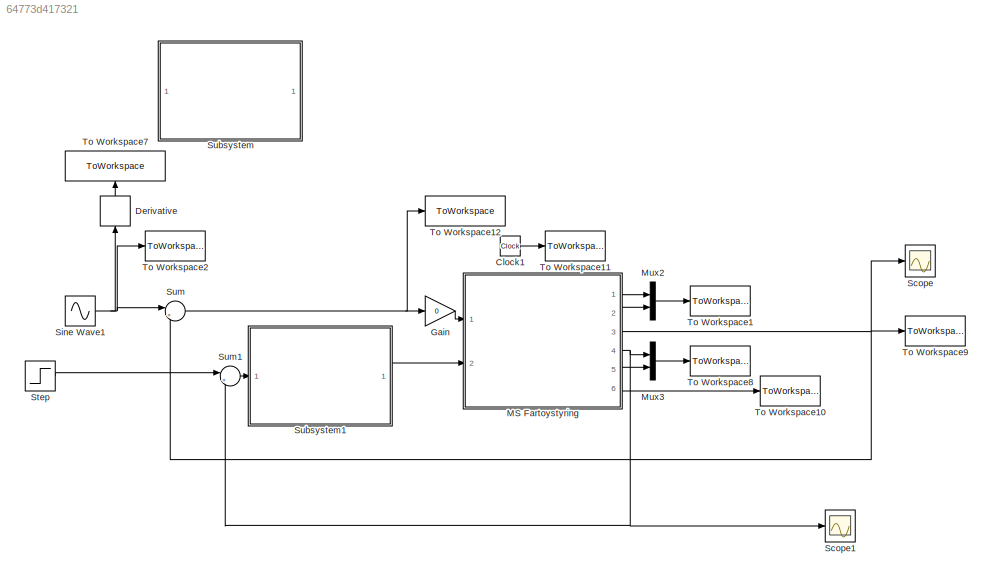
MODEL slx_64773d417321
KIND model
CONFIG AbsTol = auto
CONFIG EnableMultiTasking = on
CONFIG FixedStep = auto
CONFIG MaxStep = auto
CONFIG MinStep = auto
CONFIG RelTol = 1e-3
CONFIG SampleTimeConstraint = Unconstrained
CONFIG Solver = ode45
CONFIG SolverName = ode45
CONFIG StartTime = tstart
CONFIG StopTime = tstop
BLOCK [Clock] Clock1
BLOCK [Derivative] Derivative
BLOCK [Gain] Gain
  Gain = 0
  OutDataTypeStr = Inherit: Inherit via internal rule
  ParamDataTypeStr = Inherit: Inherit via internal rule
  SaturateOnIntegerOverflow = off
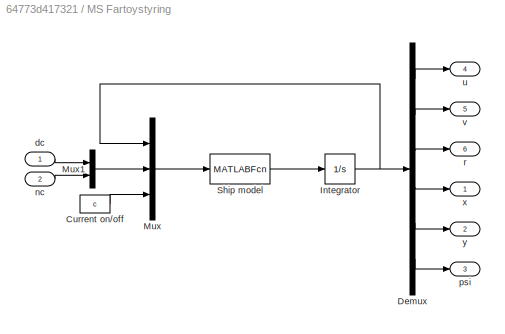
BLOCK [SubSystem] MS Fartoystyring
  Ports = [2, 6]
  RequestExecContextInheritance = off
BLOCK [Constant] MS Fartoystyring/Current on//off
  Value = c
BLOCK [Demux] MS Fartoystyring/Demux
  DisplayOption = bar
  Outputs = 6
  Ports = [1, 6]
BLOCK [Integrator] MS Fartoystyring/Integrator
  InitialCondition = [u0 v0 r0 x0 y0 psi0]'
  Ports = [1, 1]
BLOCK [Mux] MS Fartoystyring/Mux
  DisplayOption = bar
  Inputs = 3
  Ports = [3, 1]
BLOCK [Mux] MS Fartoystyring/Mux1
  DisplayOption = bar
  Inputs = 2
  Ports = [2, 1]
BLOCK [MATLABFcn] MS Fartoystyring/Ship model
  MATLABFcn = msfartoystyring(u(1:6), u(7:8), u(9))
  OutputDimensions = 6
  Ports = [1, 1]
BLOCK [Inport] MS Fartoystyring/dc
  IconDisplay = Port number
BLOCK [Inport] MS Fartoystyring/nc
  IconDisplay = Port number
  Port = 2
BLOCK [Outport] MS Fartoystyring/psi
  IconDisplay = Port number
  Port = 3
BLOCK [Outport] MS Fartoystyring/r
  IconDisplay = Port number
  Port = 6
BLOCK [Outport] MS Fartoystyring/u
  IconDisplay = Port number
  Port = 4
BLOCK [Outport] MS Fartoystyring/v
  IconDisplay = Port number
  Port = 5
BLOCK [Outport] MS Fartoystyring/x
  IconDisplay = Port number
BLOCK [Outport] MS Fartoystyring/y
  IconDisplay = Port number
  Port = 2
BLOCK [Mux] Mux2
  DisplayOption = bar
  Inputs = 2
  Ports = [2, 1]
BLOCK [Mux] Mux3
  DisplayOption = bar
  Inputs = 2
  Ports = [2, 1]
BLOCK [Scope] Scope
  Floating = off
  NumInputPorts = 1
  Ports = [1]
  ScopeSpecificationString = Simulink.scopes.TimeScopeBlockCfg('CurrentConfiguration', extmgr.ConfigurationSet(extmgr.Configuration('Core','General UI',true),extmgr.Configuration('Core','Source UI',true),extmgr.Configuration('Sources','WiredSimulink',true),extmgr.Configuration('Visuals','Time Domain',true,'SerializedDisplays',{struct('MinYLimReal','-1.30362','MaxYLimReal','0.14485','YLabelReal','','MinYLimMag','0.00000','MaxY...<+1438ch>
BLOCK [Scope] Scope1
  Floating = off
  NumInputPorts = 1
  Ports = [1]
  ScopeSpecificationString = Simulink.scopes.TimeScopeBlockCfg('CurrentConfiguration', extmgr.ConfigurationSet(extmgr.Configuration('Core','General UI',true),extmgr.Configuration('Core','Source UI',true),extmgr.Configuration('Sources','WiredSimulink',true,'DataLoggingVariableName','ScopeData1'),extmgr.Configuration('Visuals','Time Domain',true,'SerializedDisplays',{struct('MinYLimReal','2.43194','MaxYLimReal','8.10959','YLabe...<+1450ch>
BLOCK [Sin] Sine Wave1
  Amplitude = 0.4
  Frequency = 0.004
  Ports = [0, 1]
  SampleTime = 0
BLOCK [Step] Step
  After = 7
  Before = 3
  SampleTime = 0
  Time = 1250*tsamp
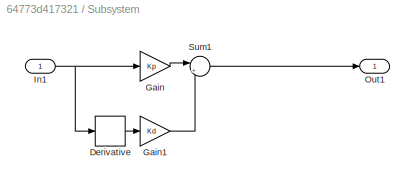
BLOCK [SubSystem] Subsystem
  Commented = on
  Ports = [1, 1]
  RequestExecContextInheritance = off
BLOCK [Derivative] Subsystem/Derivative
BLOCK [Gain] Subsystem/Gain
  Gain = Kp
  OutDataTypeStr = Inherit: Inherit via internal rule
  ParamDataTypeStr = Inherit: Inherit via internal rule
  SaturateOnIntegerOverflow = off
BLOCK [Gain] Subsystem/Gain1
  Gain = Kd
  OutDataTypeStr = Inherit: Inherit via internal rule
  ParamDataTypeStr = Inherit: Inherit via internal rule
  SaturateOnIntegerOverflow = off
BLOCK [Inport] Subsystem/In1
  IconDisplay = Port number
BLOCK [Outport] Subsystem/Out1
  IconDisplay = Port number
BLOCK [Sum] Subsystem/Sum1
  IconShape = round
  InputSameDT = off
  Inputs = |++
  OutDataTypeStr = Inherit: Inherit via internal rule
  Ports = [2, 1]
  SaturateOnIntegerOverflow = off
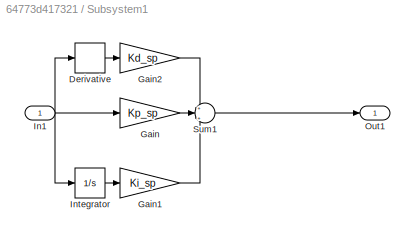
BLOCK [SubSystem] Subsystem1
  Ports = [1, 1]
  RequestExecContextInheritance = off
BLOCK [Derivative] Subsystem1/Derivative
BLOCK [Gain] Subsystem1/Gain
  Gain = Kp_sp
  OutDataTypeStr = Inherit: Inherit via internal rule
  ParamDataTypeStr = Inherit: Inherit via internal rule
  SaturateOnIntegerOverflow = off
BLOCK [Gain] Subsystem1/Gain1
  Gain = Ki_sp
  OutDataTypeStr = Inherit: Inherit via internal rule
  ParamDataTypeStr = Inherit: Inherit via internal rule
  SaturateOnIntegerOverflow = off
BLOCK [Gain] Subsystem1/Gain2
  Gain = Kd_sp
  OutDataTypeStr = Inherit: Inherit via internal rule
  ParamDataTypeStr = Inherit: Inherit via internal rule
  SaturateOnIntegerOverflow = off
BLOCK [Inport] Subsystem1/In1
  IconDisplay = Port number
BLOCK [Integrator] Subsystem1/Integrator
  Ports = [1, 1]
BLOCK [Outport] Subsystem1/Out1
  IconDisplay = Port number
BLOCK [Sum] Subsystem1/Sum1
  IconShape = round
  InputSameDT = off
  Inputs = +|++
  OutDataTypeStr = Inherit: Inherit via internal rule
  Ports = [3, 1]
  SaturateOnIntegerOverflow = off
BLOCK [Sum] Sum
  IconShape = round
  InputSameDT = off
  Inputs = |++
  OutDataTypeStr = Inherit: Inherit via internal rule
  Ports = [2, 1]
  SaturateOnIntegerOverflow = off
BLOCK [Sum] Sum1
  IconShape = round
  InputSameDT = off
  Inputs = |+-
  OutDataTypeStr = Inherit: Inherit via internal rule
  Ports = [2, 1]
  SaturateOnIntegerOverflow = off
BLOCK [ToWorkspace] To Workspace1
  MaxDataPoints = inf
  Ports = [1]
  SampleTime = tsamp
  VariableName = p
BLOCK [ToWorkspace] To Workspace10
  MaxDataPoints = inf
  Ports = [1]
  SampleTime = tsamp
  VariableName = r
BLOCK [ToWorkspace] To Workspace11
  MaxDataPoints = inf
  Ports = [1]
  SampleTime = tsamp
  VariableName = t
BLOCK [ToWorkspace] To Workspace12
  MaxDataPoints = inf
  Ports = [1]
  SampleTime = tsamp
  VariableName = rudder_input
BLOCK [ToWorkspace] To Workspace2
  MaxDataPoints = inf
  Ports = [1]
  SampleTime = tsamp
  VariableName = yaw_ref
BLOCK [ToWorkspace] To Workspace7
  MaxDataPoints = inf
  Ports = [1]
  SampleTime = tsamp
  VariableName = yaw_rate_ref
BLOCK [ToWorkspace] To Workspace8
  MaxDataPoints = inf
  Ports = [1]
  SampleTime = tsamp
  VariableName = v
BLOCK [ToWorkspace] To Workspace9
  MaxDataPoints = inf
  Ports = [1]
  SampleTime = tsamp
  VariableName = psi
LINE Clock1:1 -> To Workspace11:1
LINE Derivative:1 -> To Workspace7:1
LINE Gain:1 -> MS Fartoystyring:1
LINE MS Fartoystyring/Current on//off:1 -> MS Fartoystyring/Mux:3
LINE MS Fartoystyring/Demux:1 -> MS Fartoystyring/u:1
LINE MS Fartoystyring/Demux:2 -> MS Fartoystyring/v:1
LINE MS Fartoystyring/Demux:3 -> MS Fartoystyring/r:1
LINE MS Fartoystyring/Demux:4 -> MS Fartoystyring/x:1
LINE MS Fartoystyring/Demux:5 -> MS Fartoystyring/y:1
LINE MS Fartoystyring/Demux:6 -> MS Fartoystyring/psi:1
NET MS Fartoystyring/Integrator:1 -> MS Fartoystyring/Demux:1, MS Fartoystyring/Mux:1
LINE MS Fartoystyring/Mux1:1 -> MS Fartoystyring/Mux:2
LINE MS Fartoystyring/Mux:1 -> MS Fartoystyring/Ship model:1
LINE MS Fartoystyring/Ship model:1 -> MS Fartoystyring/Integrator:1
LINE MS Fartoystyring/dc:1 -> MS Fartoystyring/Mux1:1
LINE MS Fartoystyring/nc:1 -> MS Fartoystyring/Mux1:2
LINE MS Fartoystyring:1 -> Mux2:1
LINE MS Fartoystyring:2 -> Mux2:2
NET MS Fartoystyring:3 -> Scope:1, Sum:2, To Workspace9:1
NET MS Fartoystyring:4 -> Mux3:1, Scope1:1, Sum1:2
LINE MS Fartoystyring:5 -> Mux3:2
LINE MS Fartoystyring:6 -> To Workspace10:1
LINE Mux2:1 -> To Workspace1:1
LINE Mux3:1 -> To Workspace8:1
NET Sine Wave1:1 -> Derivative:1, Sum:1, To Workspace2:1
LINE Step:1 -> Sum1:1
LINE Subsystem/Derivative:1 -> Subsystem/Gain1:1
LINE Subsystem/Gain1:1 -> Subsystem/Sum1:2
LINE Subsystem/Gain:1 -> Subsystem/Sum1:1
NET Subsystem/In1:1 -> Subsystem/Derivative:1, Subsystem/Gain:1
LINE Subsystem/Sum1:1 -> Subsystem/Out1:1
LINE Subsystem1/Derivative:1 -> Subsystem1/Gain2:1
LINE Subsystem1/Gain1:1 -> Subsystem1/Sum1:3
LINE Subsystem1/Gain2:1 -> Subsystem1/Sum1:1
LINE Subsystem1/Gain:1 -> Subsystem1/Sum1:2
NET Subsystem1/In1:1 -> Subsystem1/Derivative:1, Subsystem1/Gain:1, Subsystem1/Integrator:1
LINE Subsystem1/Integrator:1 -> Subsystem1/Gain1:1
LINE Subsystem1/Sum1:1 -> Subsystem1/Out1:1
LINE Subsystem1:1 -> MS Fartoystyring:2
LINE Sum1:1 -> Subsystem1:1
NET Sum:1 -> Gain:1, To Workspace12:1
note: NET lines group one-source signal fan-out (src -> all destinations, sorted); 1:1 wires keep LINE
